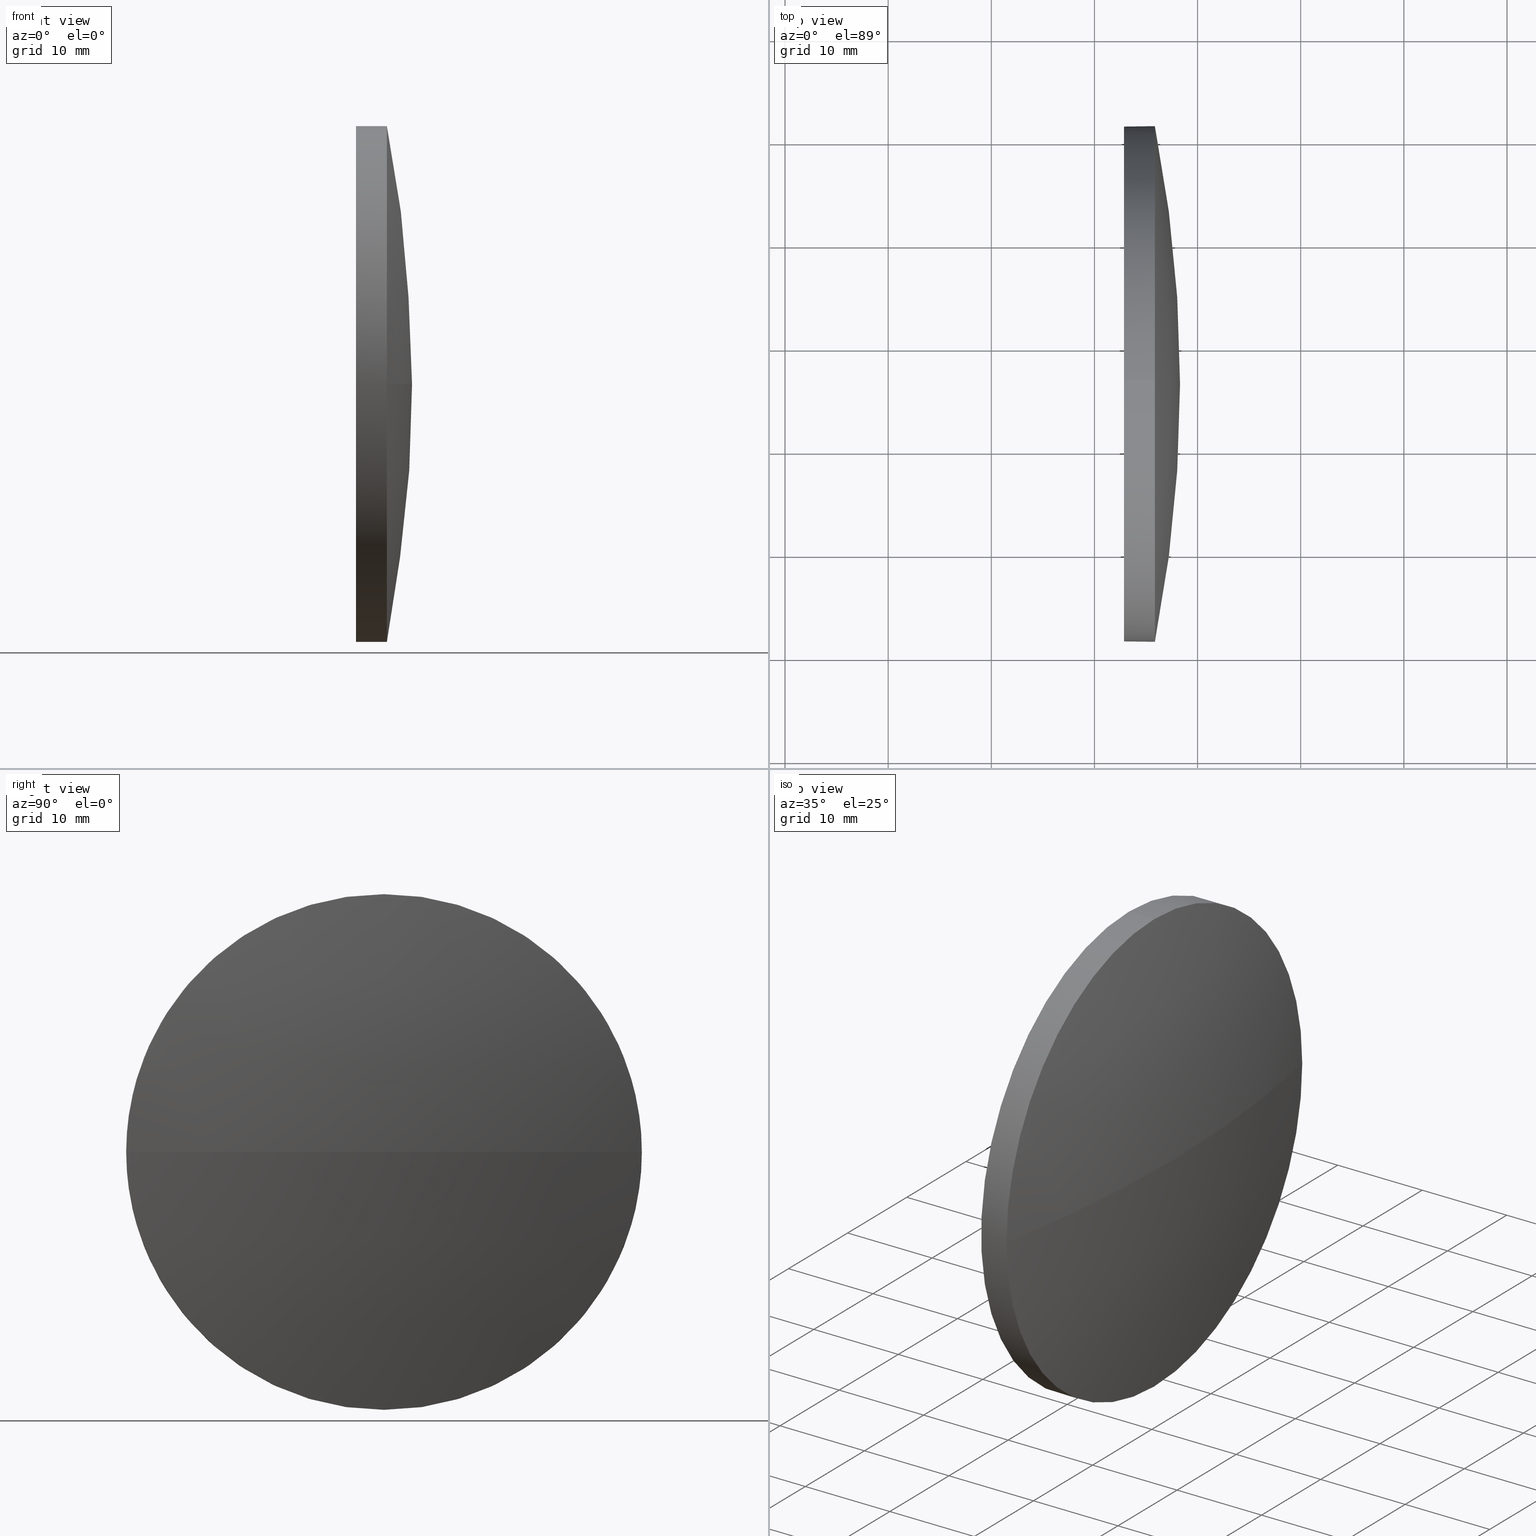
[diagram: canonical four-view strip — front | top / right | iso, engineering-drawing reading convention]
A machine part, canonical four-view strip (front | top / right | iso — engineering-drawing reading convention). The complete STEP part file that produces these views, byte-faithful:
ISO-10303-21;
HEADER;
FILE_DESCRIPTION (( 'STEP AP214' ),
    '1' );
FILE_NAME ('100070.STEP',
    '2019-04-30T09:31:31',
    ( '' ),
    ( '' ),
    'SwSTEP 2.0',
    'SolidWorks 2016',
    '' );
FILE_SCHEMA (( 'AUTOMOTIVE_DESIGN' ));
ENDSEC;

DATA;
#1 = EDGE_LOOP ( 'NONE', ( #185, #53, #18, #87, #162 ) ) ;
#2 = CARTESIAN_POINT ( 'NONE',  ( 835.8614866702325800, 351.3556078819853500, 3.061616997868370800E-015 ) ) ;
#3 = MECHANICAL_DESIGN_GEOMETRIC_PRESENTATION_REPRESENTATION (  '', ( #98 ), #127 ) ;
#4 = SURFACE_SIDE_STYLE ('',( #68 ) ) ;
#5 =( LENGTH_UNIT ( ) NAMED_UNIT ( * ) SI_UNIT ( .MILLI., .METRE. ) );
#6 =( NAMED_UNIT ( * ) PLANE_ANGLE_UNIT ( ) SI_UNIT ( $, .RADIAN. ) );
#7 = EDGE_CURVE ( 'NONE', #85, #92, #79, .T. ) ;
#8 = DIRECTION ( 'NONE',  ( -1.000000000000000000, -0.0000000000000000000, -0.0000000000000000000 ) ) ;
#9 = CARTESIAN_POINT ( 'NONE',  ( 835.8614866702325800, 326.3556078819852900, 0.0000000000000000000 ) ) ;
#10 = APPLICATION_CONTEXT ( 'automotive_design' ) ;
#11 = EDGE_LOOP ( 'NONE', ( #80, #133, #160, #56 ) ) ;
#12 = FACE_OUTER_BOUND ( 'NONE', #51, .T. ) ;
#13 = EDGE_CURVE ( 'NONE', #76, #169, #143, .T. ) ;
#14 = AXIS2_PLACEMENT_3D ( 'NONE', #86, #137, #182 ) ;
#15 = ORIENTED_EDGE ( 'NONE', *, *, #17, .F. ) ;
#16 = COLOUR_RGB ( '',1.000000000000000000, 1.000000000000000000, 1.000000000000000000 ) ;
#17 = EDGE_CURVE ( 'NONE', #169, #76, #48, .T. ) ;
#18 = ORIENTED_EDGE ( 'NONE', *, *, #156, .T. ) ;
#19 = AXIS2_PLACEMENT_3D ( 'NONE', #148, #175, #176 ) ;
#20 = ADVANCED_FACE ( 'NONE', ( #158 ), #106, .T. ) ;
#21 = EDGE_LOOP ( 'NONE', ( #25, #117, #91, #38 ) ) ;
#22 = CIRCLE ( 'NONE', #40, 24.99999999999996800 ) ;
#23 =( NAMED_UNIT ( * ) PLANE_ANGLE_UNIT ( ) SI_UNIT ( $, .RADIAN. ) );
#24 = FILL_AREA_STYLE ('',( #108 ) ) ;
#25 = ORIENTED_EDGE ( 'NONE', *, *, #132, .F. ) ;
#26 = DIRECTION ( 'NONE',  ( -1.000000000000000000, -0.0000000000000000000, -0.0000000000000000000 ) ) ;
#27 = CARTESIAN_POINT ( 'NONE',  ( 835.8614866702325800, 326.3556078819852900, 24.99999999999996800 ) ) ;
#28 = CARTESIAN_POINT ( 'NONE',  ( 835.8614866702325800, 301.3556078819854100, 0.0000000000000000000 ) ) ;
#29 = DIRECTION ( 'NONE',  ( -1.000000000000000000, -0.0000000000000000000, -0.0000000000000000000 ) ) ;
#30 = DIRECTION ( 'NONE',  ( 0.0000000000000000000, 0.0000000000000000000, 1.000000000000000000 ) ) ;
#31 = CARTESIAN_POINT ( 'NONE',  ( 709.0077161784291800, 326.3556078819854100, 0.0000000000000000000 ) ) ;
#32 =( NAMED_UNIT ( * ) PLANE_ANGLE_UNIT ( ) SI_UNIT ( $, .RADIAN. ) );
#33 = AXIS2_PLACEMENT_3D ( 'NONE', #110, #30, #126 ) ;
#34 = PRESENTATION_STYLE_ASSIGNMENT (( #136 ) ) ;
#35 = AXIS2_PLACEMENT_3D ( 'NONE', #95, #181, #112 ) ;
#36 = PRESENTATION_LAYER_ASSIGNMENT (  '', '', ( #124 ) ) ;
#37 = DIRECTION ( 'NONE',  ( -1.000000000000000000, -0.0000000000000000000, -0.0000000000000000000 ) ) ;
#38 = ORIENTED_EDGE ( 'NONE', *, *, #156, .F. ) ;
#39 = CARTESIAN_POINT ( 'NONE',  ( 823.4392472330453100, 326.3556078819852900, 24.99999999999996800 ) ) ;
#40 = AXIS2_PLACEMENT_3D ( 'NONE', #45, #44, #139 ) ;
#41 = CARTESIAN_POINT ( 'NONE',  ( 835.8614866702325800, 326.3556078819852900, 0.0000000000000000000 ) ) ;
#42 = FACE_OUTER_BOUND ( 'NONE', #11, .T. ) ;
#43 = FILL_AREA_STYLE_COLOUR ( '', #16 ) ;
#44 = DIRECTION ( 'NONE',  ( -1.000000000000000000, -0.0000000000000000000, -0.0000000000000000000 ) ) ;
#45 = CARTESIAN_POINT ( 'NONE',  ( 835.8614866702325800, 326.3556078819852900, 0.0000000000000000000 ) ) ;
#46 = DIRECTION ( 'NONE',  ( 0.0000000000000000000, 0.0000000000000000000, 1.000000000000000000 ) ) ;
#47 =( GEOMETRIC_REPRESENTATION_CONTEXT ( 3 ) GLOBAL_UNCERTAINTY_ASSIGNED_CONTEXT ( ( #107 ) ) GLOBAL_UNIT_ASSIGNED_CONTEXT ( ( #5, #32, #63 ) ) REPRESENTATION_CONTEXT ( 'NONE', 'WORKASPACE' ) );
#48 = CIRCLE ( 'NONE', #149, 24.99999999999996800 ) ;
#49 = EDGE_LOOP ( 'NONE', ( #65, #128 ) ) ;
#50 = MECHANICAL_DESIGN_GEOMETRIC_PRESENTATION_REPRESENTATION (  '', ( #124 ), #104 ) ;
#51 = EDGE_LOOP ( 'NONE', ( #119, #61, #15, #89, #54 ) ) ;
#52 = AXIS2_PLACEMENT_3D ( 'NONE', #168, #178, #82 ) ;
#53 = ORIENTED_EDGE ( 'NONE', *, *, #167, .T. ) ;
#54 = ORIENTED_EDGE ( 'NONE', *, *, #121, .T. ) ;
#55 = SPHERICAL_SURFACE ( 'NONE', #33, 129.2937704918034600 ) ;
#56 = ORIENTED_EDGE ( 'NONE', *, *, #7, .F. ) ;
#57 = DIRECTION ( 'NONE',  ( -1.000000000000000000, -0.0000000000000000000, -0.0000000000000000000 ) ) ;
#58 = DIRECTION ( 'NONE',  ( 1.000000000000000000, 0.0000000000000000000, 0.0000000000000000000 ) ) ;
#59 = CARTESIAN_POINT ( 'NONE',  ( 823.4392472330453100, 326.3556078819852900, -24.99999999999996800 ) ) ;
#60 = PLANE ( 'NONE',  #70 ) ;
#61 = ORIENTED_EDGE ( 'NONE', *, *, #144, .T. ) ;
#62 = SPHERICAL_SURFACE ( 'NONE', #141, 129.2937704918034600 ) ;
#63 =( NAMED_UNIT ( * ) SI_UNIT ( $, .STERADIAN. ) SOLID_ANGLE_UNIT ( ) );
#64 = UNCERTAINTY_MEASURE_WITH_UNIT (LENGTH_MEASURE( 1.000000000000000100E-005 ), #84, 'distance_accuracy_value', 'NONE');
#65 = ORIENTED_EDGE ( 'NONE', *, *, #17, .T. ) ;
#66 = PRESENTATION_STYLE_ASSIGNMENT (( #74 ) ) ;
#67 = PRODUCT_DEFINITION_SHAPE ( 'NONE', 'NONE',  #111 ) ;
#68 = SURFACE_STYLE_FILL_AREA ( #24 ) ;
#69 = ADVANCED_FACE ( 'NONE', ( #12 ), #122, .T. ) ;
#70 = AXIS2_PLACEMENT_3D ( 'NONE', #135, #58, #75 ) ;
#71 =( NAMED_UNIT ( * ) SI_UNIT ( $, .STERADIAN. ) SOLID_ANGLE_UNIT ( ) );
#72 = DIRECTION ( 'NONE',  ( -1.000000000000000000, -0.0000000000000000000, -0.0000000000000000000 ) ) ;
#73 = DIRECTION ( 'NONE',  ( 0.0000000000000000000, 0.0000000000000000000, 1.000000000000000000 ) ) ;
#74 = SURFACE_STYLE_USAGE ( .BOTH. , #157 ) ;
#75 = DIRECTION ( 'NONE',  ( 0.0000000000000000000, 0.0000000000000000000, -1.000000000000000000 ) ) ;
#76 = VERTEX_POINT ( 'NONE', #146 ) ;
#77 = VERTEX_POINT ( 'NONE', #27 ) ;
#78 = AXIS2_PLACEMENT_3D ( 'NONE', #152, #26, #166 ) ;
#79 = CIRCLE ( 'NONE', #174, 24.99999999999996800 ) ;
#80 = ORIENTED_EDGE ( 'NONE', *, *, #184, .F. ) ;
#81 = DIRECTION ( 'NONE',  ( 0.0000000000000000000, 0.0000000000000000000, 1.000000000000000000 ) ) ;
#82 = DIRECTION ( 'NONE',  ( -1.000000000000000000, 0.0000000000000000000, 0.0000000000000000000 ) ) ;
#83 = FILL_AREA_STYLE ('',( #43 ) ) ;
#84 =( LENGTH_UNIT ( ) NAMED_UNIT ( * ) SI_UNIT ( .MILLI., .METRE. ) );
#85 = VERTEX_POINT ( 'NONE', #2 ) ;
#86 = CARTESIAN_POINT ( 'NONE',  ( 0.0000000000000000000, 0.0000000000000000000, 0.0000000000000000000 ) ) ;
#87 = ORIENTED_EDGE ( 'NONE', *, *, #109, .T. ) ;
#88 = MANIFOLD_SOLID_BREP ( '��ת1', #186 ) ;
#89 = ORIENTED_EDGE ( 'NONE', *, *, #109, .F. ) ;
#90 = PRODUCT_DEFINITION_CONTEXT ( 'detailed design', #10, 'design' ) ;
#91 = ORIENTED_EDGE ( 'NONE', *, *, #121, .F. ) ;
#92 = VERTEX_POINT ( 'NONE', #123 ) ;
#93 = FACE_OUTER_BOUND ( 'NONE', #49, .T. ) ;
#94 = DIRECTION ( 'NONE',  ( 0.0000000000000000000, 0.0000000000000000000, 1.000000000000000000 ) ) ;
#95 = CARTESIAN_POINT ( 'NONE',  ( 709.0077161784291800, 326.3556078819854100, 0.0000000000000000000 ) ) ;
#96 = DIRECTION ( 'NONE',  ( -1.000000000000000000, -0.0000000000000000000, -0.0000000000000000000 ) ) ;
#97 = CARTESIAN_POINT ( 'NONE',  ( 832.8614866702325800, 326.3556078819852900, 24.99999999999996800 ) ) ;
#98 = STYLED_ITEM ( 'NONE', ( #34 ), #88 ) ;
#99 = CIRCLE ( 'NONE', #52, 129.2937704918034600 ) ;
#100 = PRODUCT_CONTEXT ( 'NONE', #183, 'mechanical' ) ;
#101 = PRODUCT ( '100070', '100070', '', ( #100 ) ) ;
#102 = CIRCLE ( 'NONE', #161, 24.99999999999996800 ) ;
#103 = AXIS2_PLACEMENT_3D ( 'NONE', #105, #57, #94 ) ;
#104 =( GEOMETRIC_REPRESENTATION_CONTEXT ( 3 ) GLOBAL_UNCERTAINTY_ASSIGNED_CONTEXT ( ( #64 ) ) GLOBAL_UNIT_ASSIGNED_CONTEXT ( ( #84, #6, #125 ) ) REPRESENTATION_CONTEXT ( 'NONE', 'WORKASPACE' ) );
#105 = CARTESIAN_POINT ( 'NONE',  ( 823.4392472330453100, 326.3556078819852900, 0.0000000000000000000 ) ) ;
#106 = CYLINDRICAL_SURFACE ( 'NONE', #78, 24.99999999999996800 ) ;
#107 = UNCERTAINTY_MEASURE_WITH_UNIT (LENGTH_MEASURE( 1.000000000000000100E-005 ), #5, 'distance_accuracy_value', 'NONE');
#108 = FILL_AREA_STYLE_COLOUR ( '', #114 ) ;
#109 = EDGE_CURVE ( 'NONE', #77, #169, #180, .T. ) ;
#110 = CARTESIAN_POINT ( 'NONE',  ( 709.0077161784291800, 326.3556078819854100, 0.0000000000000000000 ) ) ;
#111 = PRODUCT_DEFINITION ( 'δ֪', '', #159, #90 ) ;
#112 = DIRECTION ( 'NONE',  ( 0.0000000000000000000, -1.000000000000000000, -1.224646799147353200E-016 ) ) ;
#113 = APPLICATION_PROTOCOL_DEFINITION ( 'draft international standard', 'automotive_design', 1998, #10 ) ;
#114 = COLOUR_RGB ( '',1.000000000000000000, 1.000000000000000000, 1.000000000000000000 ) ;
#115 = CIRCLE ( 'NONE', #35, 129.2937704918034600 ) ;
#116 = VERTEX_POINT ( 'NONE', #154 ) ;
#117 = ORIENTED_EDGE ( 'NONE', *, *, #184, .T. ) ;
#118 = ADVANCED_FACE ( 'NONE', ( #42 ), #55, .T. ) ;
#119 = ORIENTED_EDGE ( 'NONE', *, *, #7, .T. ) ;
#120 = ADVANCED_BREP_SHAPE_REPRESENTATION ( '100070', ( #88, #14 ), #47 ) ;
#121 = EDGE_CURVE ( 'NONE', #77, #85, #22, .T. ) ;
#122 = CYLINDRICAL_SURFACE ( 'NONE', #103, 24.99999999999996800 ) ;
#123 = CARTESIAN_POINT ( 'NONE',  ( 835.8614866702325800, 326.3556078819852900, -24.99999999999996800 ) ) ;
#124 = STYLED_ITEM ( 'NONE', ( #66 ), #120 ) ;
#125 =( NAMED_UNIT ( * ) SI_UNIT ( $, .STERADIAN. ) SOLID_ANGLE_UNIT ( ) );
#126 = DIRECTION ( 'NONE',  ( 0.0000000000000000000, -1.000000000000000000, 0.0000000000000000000 ) ) ;
#127 =( GEOMETRIC_REPRESENTATION_CONTEXT ( 3 ) GLOBAL_UNCERTAINTY_ASSIGNED_CONTEXT ( ( #140 ) ) GLOBAL_UNIT_ASSIGNED_CONTEXT ( ( #179, #23, #71 ) ) REPRESENTATION_CONTEXT ( 'NONE', 'WORKASPACE' ) );
#128 = ORIENTED_EDGE ( 'NONE', *, *, #13, .T. ) ;
#129 = VERTEX_POINT ( 'NONE', #28 ) ;
#130 = LINE ( 'NONE', #59, #163 ) ;
#131 = AXIS2_PLACEMENT_3D ( 'NONE', #155, #29, #46 ) ;
#132 = EDGE_CURVE ( 'NONE', #116, #129, #99, .T. ) ;
#133 = ORIENTED_EDGE ( 'NONE', *, *, #132, .T. ) ;
#134 = CIRCLE ( 'NONE', #131, 24.99999999999996800 ) ;
#135 = CARTESIAN_POINT ( 'NONE',  ( 832.8614866702325800, 326.3556078819852900, 0.0000000000000000000 ) ) ;
#136 = SURFACE_STYLE_USAGE ( .BOTH. , #4 ) ;
#137 = DIRECTION ( 'NONE',  ( 0.0000000000000000000, 0.0000000000000000000, 1.000000000000000000 ) ) ;
#138 = SURFACE_STYLE_FILL_AREA ( #83 ) ;
#139 = DIRECTION ( 'NONE',  ( 0.0000000000000000000, 0.0000000000000000000, 1.000000000000000000 ) ) ;
#140 = UNCERTAINTY_MEASURE_WITH_UNIT (LENGTH_MEASURE( 1.000000000000000100E-005 ), #179, 'distance_accuracy_value', 'NONE');
#141 = AXIS2_PLACEMENT_3D ( 'NONE', #31, #165, #151 ) ;
#142 = VECTOR ( 'NONE', #8, 1000.000000000000000 ) ;
#143 = CIRCLE ( 'NONE', #19, 24.99999999999996800 ) ;
#144 = EDGE_CURVE ( 'NONE', #92, #76, #130, .T. ) ;
#145 = ADVANCED_FACE ( 'NONE', ( #147 ), #62, .T. ) ;
#146 = CARTESIAN_POINT ( 'NONE',  ( 832.8614866702325800, 326.3556078819852900, -24.99999999999996800 ) ) ;
#147 = FACE_OUTER_BOUND ( 'NONE', #21, .T. ) ;
#148 = CARTESIAN_POINT ( 'NONE',  ( 832.8614866702325800, 326.3556078819852900, 0.0000000000000000000 ) ) ;
#149 = AXIS2_PLACEMENT_3D ( 'NONE', #177, #37, #150 ) ;
#150 = DIRECTION ( 'NONE',  ( 0.0000000000000000000, 0.0000000000000000000, 1.000000000000000000 ) ) ;
#151 = DIRECTION ( 'NONE',  ( 0.0000000000000000000, -1.000000000000000000, 0.0000000000000000000 ) ) ;
#152 = CARTESIAN_POINT ( 'NONE',  ( 823.4392472330453100, 326.3556078819852900, 0.0000000000000000000 ) ) ;
#153 = PRODUCT_RELATED_PRODUCT_CATEGORY ( 'part', '', ( #101 ) ) ;
#154 = CARTESIAN_POINT ( 'NONE',  ( 838.3014866702326300, 326.3556078819854100, 0.0000000000000000000 ) ) ;
#155 = CARTESIAN_POINT ( 'NONE',  ( 835.8614866702325800, 326.3556078819852900, 0.0000000000000000000 ) ) ;
#156 = EDGE_CURVE ( 'NONE', #129, #77, #134, .T. ) ;
#157 = SURFACE_SIDE_STYLE ('',( #138 ) ) ;
#158 = FACE_OUTER_BOUND ( 'NONE', #1, .T. ) ;
#159 = PRODUCT_DEFINITION_FORMATION_WITH_SPECIFIED_SOURCE ( '�κ�', '', #101, .NOT_KNOWN. ) ;
#160 = ORIENTED_EDGE ( 'NONE', *, *, #167, .F. ) ;
#161 = AXIS2_PLACEMENT_3D ( 'NONE', #9, #72, #73 ) ;
#162 = ORIENTED_EDGE ( 'NONE', *, *, #13, .F. ) ;
#163 = VECTOR ( 'NONE', #96, 1000.000000000000000 ) ;
#164 = DIRECTION ( 'NONE',  ( -1.000000000000000000, -0.0000000000000000000, -0.0000000000000000000 ) ) ;
#165 = DIRECTION ( 'NONE',  ( 0.0000000000000000000, 0.0000000000000000000, 1.000000000000000000 ) ) ;
#166 = DIRECTION ( 'NONE',  ( 0.0000000000000000000, 0.0000000000000000000, 1.000000000000000000 ) ) ;
#167 = EDGE_CURVE ( 'NONE', #92, #129, #102, .T. ) ;
#168 = CARTESIAN_POINT ( 'NONE',  ( 709.0077161784291800, 326.3556078819854100, 0.0000000000000000000 ) ) ;
#169 = VERTEX_POINT ( 'NONE', #97 ) ;
#170 = APPLICATION_PROTOCOL_DEFINITION ( 'draft international standard', 'automotive_design', 1998, #183 ) ;
#171 = SHAPE_DEFINITION_REPRESENTATION ( #67, #120 ) ;
#172 = PRESENTATION_LAYER_ASSIGNMENT (  '', '', ( #98 ) ) ;
#173 = ADVANCED_FACE ( 'NONE', ( #93 ), #60, .F. ) ;
#174 = AXIS2_PLACEMENT_3D ( 'NONE', #41, #164, #81 ) ;
#175 = DIRECTION ( 'NONE',  ( -1.000000000000000000, -0.0000000000000000000, -0.0000000000000000000 ) ) ;
#176 = DIRECTION ( 'NONE',  ( 0.0000000000000000000, 0.0000000000000000000, 1.000000000000000000 ) ) ;
#177 = CARTESIAN_POINT ( 'NONE',  ( 832.8614866702325800, 326.3556078819852900, 0.0000000000000000000 ) ) ;
#178 = DIRECTION ( 'NONE',  ( 0.0000000000000000000, 0.0000000000000000000, -1.000000000000000000 ) ) ;
#179 =( LENGTH_UNIT ( ) NAMED_UNIT ( * ) SI_UNIT ( .MILLI., .METRE. ) );
#180 = LINE ( 'NONE', #39, #142 ) ;
#181 = DIRECTION ( 'NONE',  ( 0.0000000000000000000, -1.224646799147353200E-016, 1.000000000000000000 ) ) ;
#182 = DIRECTION ( 'NONE',  ( 1.000000000000000000, 0.0000000000000000000, 0.0000000000000000000 ) ) ;
#183 = APPLICATION_CONTEXT ( 'automotive_design' ) ;
#184 = EDGE_CURVE ( 'NONE', #116, #85, #115, .T. ) ;
#185 = ORIENTED_EDGE ( 'NONE', *, *, #144, .F. ) ;
#186 = CLOSED_SHELL ( 'NONE', ( #69, #145, #118, #20, #173 ) ) ;
ENDSEC;
END-ISO-10303-21;
